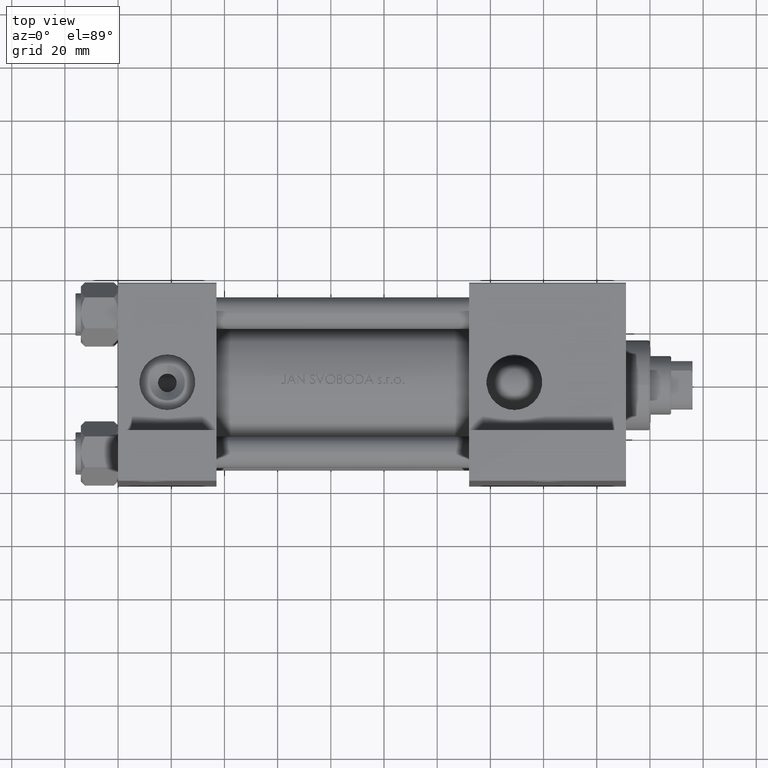
[diagram: clean part render]
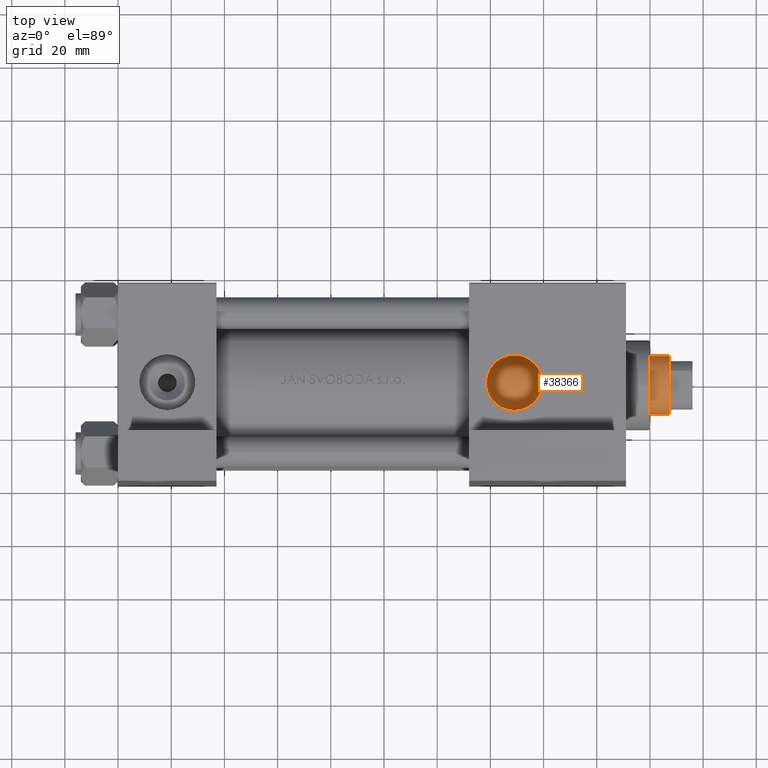
[diagram: same view with one face highlighted and labeled with its STEP entity id]
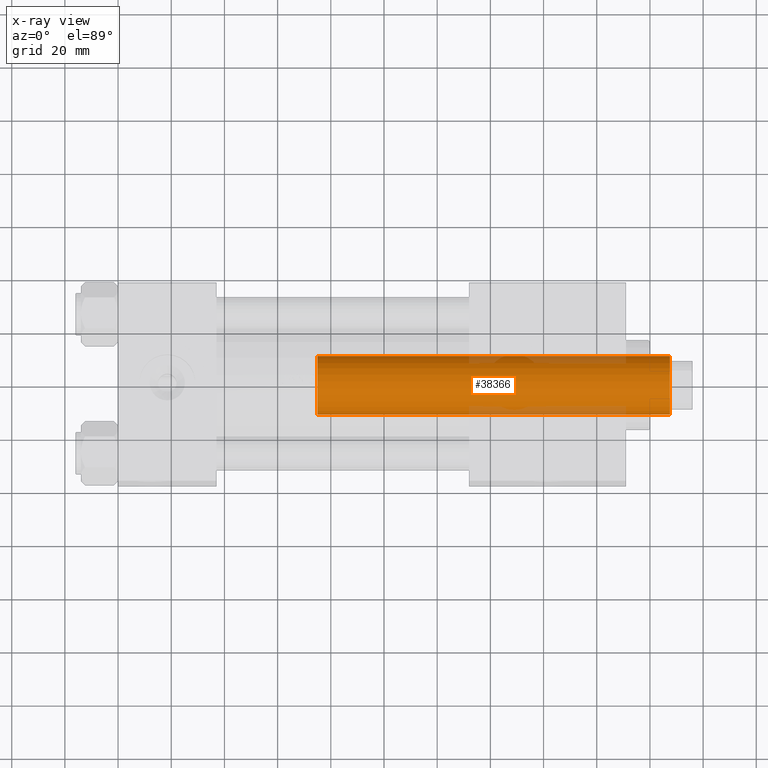
[diagram: x-ray of the same camera — body ghosted, the highlighted face saturated]
A machine part, top view. The second image highlights one B-rep face of the part: STEP entity #38366.
The next image is the same camera in x-ray: the body ghosted, the highlighted face saturated — about 11% of this face is hidden behind the body in this view.
In plain terms, the highlighted cylindrical surface (edge-blend (fillet) strip) has radius 11 mm, axis along (-1, 0, 0).
Its self-contained STEP definition (entity closure, byte-faithful):
#4016 = AXIS2_PLACEMENT_3D ( 'NONE', #22133, #14644, #30846 ) ;
#4760 = VERTEX_POINT ( 'NONE', #22530 ) ;
#6262 = EDGE_LOOP ( 'NONE', ( #38919, #40656, #24295, #24920 ) ) ;
#7494 = CARTESIAN_POINT ( 'NONE',  ( 11.00000000000000000, 1.347111479062088405E-15, 171.0000000000000000 ) ) ;
#7565 = DIRECTION ( 'NONE',  ( -0.000000000000000000, -0.000000000000000000, -1.000000000000000000 ) ) ;
#11292 = FACE_OUTER_BOUND ( 'NONE', #6262, .T. ) ;
#11849 = CIRCLE ( 'NONE', #34160, 11.00000000000000000 ) ;
#14053 = CARTESIAN_POINT ( 'NONE',  ( 0.000000000000000000, 0.000000000000000000, 171.0000000000000000 ) ) ;
#14644 = DIRECTION ( 'NONE',  ( 0.000000000000000000, 0.000000000000000000, 1.000000000000000000 ) ) ;
#17511 = CIRCLE ( 'NONE', #4016, 11.00000000000000000 ) ;
#21299 = CARTESIAN_POINT ( 'NONE',  ( 0.000000000000000000, 0.000000000000000000, 170.5000000000000000 ) ) ;
#22133 = CARTESIAN_POINT ( 'NONE',  ( 0.000000000000000000, 0.000000000000000000, 38.00000000000000000 ) ) ;
#22530 = CARTESIAN_POINT ( 'NONE',  ( 11.00000000000000000, 1.347111479062088405E-15, 38.00000000000000000 ) ) ;
#24295 = ORIENTED_EDGE ( 'NONE', *, *, #26761, .T. ) ;
#24302 = DIRECTION ( 'NONE',  ( 1.000000000000000000, 0.000000000000000000, 0.000000000000000000 ) ) ;
#24920 = ORIENTED_EDGE ( 'NONE', *, *, #32140, .T. ) ;
#26761 = EDGE_CURVE ( 'NONE', #43693, #41103, #28744, .T. ) ;
#27241 = CARTESIAN_POINT ( 'NONE',  ( 11.00000000000000000, 1.347111479062088405E-15, 170.5000000000000000 ) ) ;
#28744 = LINE ( 'NONE', #44651, #29300 ) ;
#29300 = VECTOR ( 'NONE', #36959, 1000.000000000000000 ) ;
#29543 = VECTOR ( 'NONE', #45592, 1000.000000000000000 ) ;
#29932 = LINE ( 'NONE', #7494, #29543 ) ;
#30846 = DIRECTION ( 'NONE',  ( 1.000000000000000000, 0.000000000000000000, 0.000000000000000000 ) ) ;
#30922 = VERTEX_POINT ( 'NONE', #27241 ) ;
#32140 = EDGE_CURVE ( 'NONE', #41103, #4760, #17511, .T. ) ;
#33465 = EDGE_CURVE ( 'NONE', #30922, #43693, #11849, .T. ) ;
#33523 = AXIS2_PLACEMENT_3D ( 'NONE', #14053, #7565, #41686 ) ;
#33733 = CYLINDRICAL_SURFACE ( 'NONE', #33523, 11.00000000000000000 ) ;
#34160 = AXIS2_PLACEMENT_3D ( 'NONE', #21299, #47931, #24302 ) ;
#36959 = DIRECTION ( 'NONE',  ( -0.000000000000000000, -0.000000000000000000, -1.000000000000000000 ) ) ;
#37095 = CARTESIAN_POINT ( 'NONE',  ( -11.00000000000000000, 0.000000000000000000, 38.00000000000000000 ) ) ;
#38366 = ADVANCED_FACE ( 'NONE', ( #11292 ), #33733, .T. ) ;
#38919 = ORIENTED_EDGE ( 'NONE', *, *, #42001, .F. ) ;
#39998 = CARTESIAN_POINT ( 'NONE',  ( -11.00000000000000000, 0.000000000000000000, 170.5000000000000000 ) ) ;
#40656 = ORIENTED_EDGE ( 'NONE', *, *, #33465, .T. ) ;
#41103 = VERTEX_POINT ( 'NONE', #37095 ) ;
#41686 = DIRECTION ( 'NONE',  ( -1.000000000000000000, 0.000000000000000000, 0.000000000000000000 ) ) ;
#42001 = EDGE_CURVE ( 'NONE', #30922, #4760, #29932, .T. ) ;
#43693 = VERTEX_POINT ( 'NONE', #39998 ) ;
#44651 = CARTESIAN_POINT ( 'NONE',  ( -11.00000000000000000, 0.000000000000000000, 171.0000000000000000 ) ) ;
#45592 = DIRECTION ( 'NONE',  ( -0.000000000000000000, -0.000000000000000000, -1.000000000000000000 ) ) ;
#47931 = DIRECTION ( 'NONE',  ( 0.000000000000000000, 0.000000000000000000, -1.000000000000000000 ) ) ;